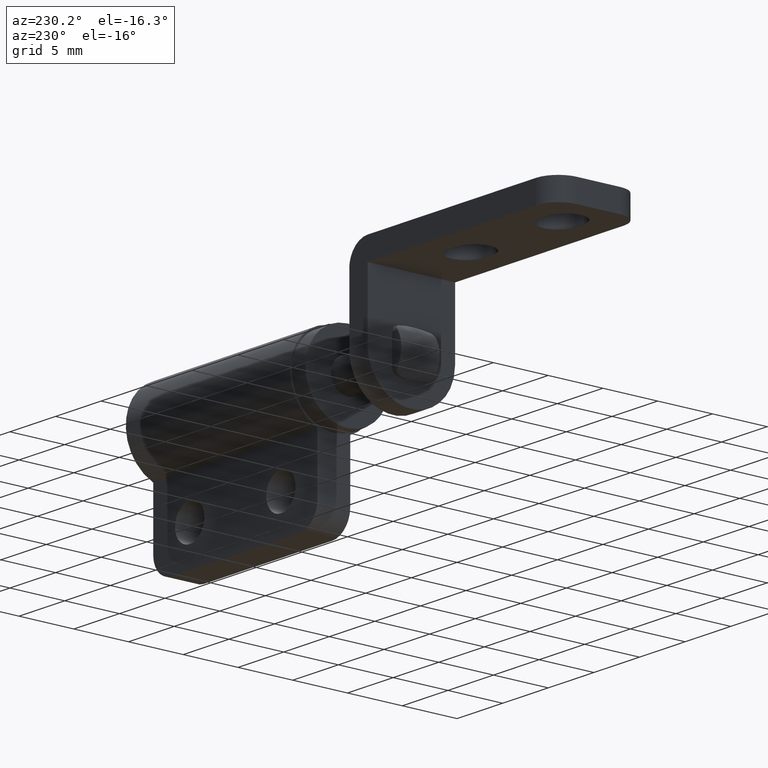
[diagram: clean part render]
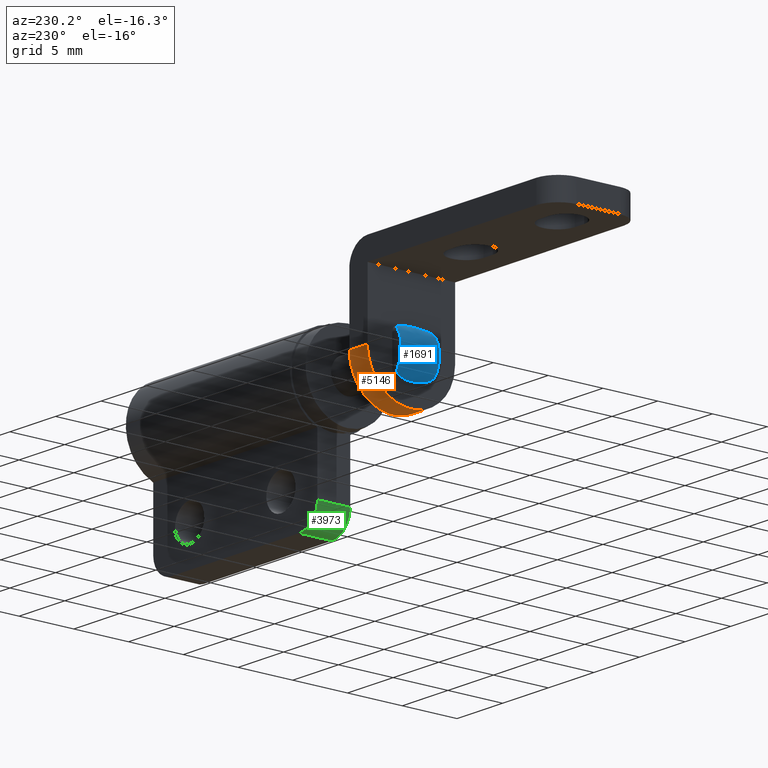
[diagram: same view with three faces highlighted in distinct colors, each labeled with its STEP entity id]
A machine part, auxiliary view with three faces highlighted in distinct colors.
Their STEP definitions:

[orange] entity #5146 — the highlighted face is a freeform B-spline surface patch.
#4999=CARTESIAN_POINT('',(-2.0,3.999999999999940,0.000000698131700));
#5000=VERTEX_POINT('',#4999);
#5008=CARTESIAN_POINT('',(-2.0,-3.999999999999885,-2.449213E-016));
#5009=VERTEX_POINT('',#5008);
#5010=CARTESIAN_POINT('',(-2.0,-3.999999999999885,-2.449213E-016));
#5011=CARTESIAN_POINT('',(-2.000000000000000,-4.0,-2.309401231898885));
#5012=CARTESIAN_POINT('',(-2.0,-1.999999798466734,-3.464101731493032));
#5013=CARTESIAN_POINT('',(-2.000000000000000,0.000000403066532,-4.618802231087182));
#5014=CARTESIAN_POINT('',(-2.0,2.000000403066511,-3.464101382427165));
#5015=CARTESIAN_POINT('',(-2.000000000000000,4.000000403066491,-2.309400533767148));
#5016=CARTESIAN_POINT('',(-2.0,3.999999999999939,0.000000698131699));
#5024=(BOUNDED_CURVE()B_SPLINE_CURVE(2,(#5010,#5011,#5012,#5013,#5014,#5015,#5016),.UNSPECIFIED.,.F.,.U.)B_SPLINE_CURVE_WITH_KNOTS((3,2,2,3),(0.0,0.333333333333333,0.666666666666667,1.0),.UNSPECIFIED.)CURVE()GEOMETRIC_REPRESENTATION_ITEM()RATIONAL_B_SPLINE_CURVE((1.0,0.866025389240028,1.0,0.866025389240028,1.0,0.866025389240028,1.0))REPRESENTATION_ITEM(''));
#5025=EDGE_CURVE('',#5009,#5000,#5024,.T.);
#5053=CARTESIAN_POINT('',(0.0,3.999999999999940,0.000000698131700));
#5054=VERTEX_POINT('',#5053);
#5061=CARTESIAN_POINT('',(0.0,-3.999999999999885,-2.449213E-016));
#5062=VERTEX_POINT('',#5061);
#5068=CARTESIAN_POINT('',(0.0,-3.999999999999885,-2.449213E-016));
#5069=CARTESIAN_POINT('',(0.0,-4.0,-2.309401231898885));
#5070=CARTESIAN_POINT('',(0.0,-1.999999798466734,-3.464101731493032));
#5071=CARTESIAN_POINT('',(0.0,0.000000403066532,-4.618802231087182));
#5072=CARTESIAN_POINT('',(0.0,2.000000403066511,-3.464101382427165));
#5073=CARTESIAN_POINT('',(0.0,4.000000403066491,-2.309400533767148));
#5074=CARTESIAN_POINT('',(0.0,3.999999999999939,0.000000698131699));
#5082=(BOUNDED_CURVE()B_SPLINE_CURVE(2,(#5068,#5069,#5070,#5071,#5072,#5073,#5074),.UNSPECIFIED.,.F.,.U.)B_SPLINE_CURVE_WITH_KNOTS((3,2,2,3),(0.0,0.333333333333333,0.666666666666667,1.0),.UNSPECIFIED.)CURVE()GEOMETRIC_REPRESENTATION_ITEM()RATIONAL_B_SPLINE_CURVE((1.0,0.866025389240028,1.0,0.866025389240028,1.0,0.866025389240028,1.0))REPRESENTATION_ITEM(''));
#5083=EDGE_CURVE('',#5062,#5054,#5082,.T.);
#5114=CARTESIAN_POINT('',(-2.050000000000000,3.998629281627209,0.104708491123965));
#5115=CARTESIAN_POINT('',(0.051250000000000,3.998629281627209,0.104708491123965));
#5116=CARTESIAN_POINT('',(-2.050000000000000,4.108009198430141,-4.072314150070897));
#5117=CARTESIAN_POINT('',(0.051250000000000,4.108009198430141,-4.072314150070897));
#5118=CARTESIAN_POINT('',(-2.050000000000000,-0.069808927723755,-3.999390792809581));
#5119=CARTESIAN_POINT('',(0.051250000000000,-0.069808927723755,-3.999390792809581));
#5120=CARTESIAN_POINT('',(-2.050000000000000,-4.247627053877651,-3.926467435548264));
#5121=CARTESIAN_POINT('',(0.051250000000000,-4.247627053877651,-3.926467435548264));
#5122=CARTESIAN_POINT('',(-2.050000000000000,-3.992539236307326,0.244193461309873));
#5123=CARTESIAN_POINT('',(0.051250000000000,-3.992539236307326,0.244193461309873));
#5131=(BOUNDED_SURFACE()B_SPLINE_SURFACE(1,2,((#5114,#5116,#5118,#5120,#5122),(#5115,#5117,#5119,#5121,#5123)),.UNSPECIFIED.,.F.,.F.,.U.)B_SPLINE_SURFACE_WITH_KNOTS((2,2),(3,2,3),(0.0,2.101250000000000),(0.0,6.832831324267236,13.665662648534470),.UNSPECIFIED.)GEOMETRIC_REPRESENTATION_ITEM()RATIONAL_B_SPLINE_SURFACE(((1.0,0.691513055782269,1.0,0.691513055782269,1.0),(1.0,0.691513055782269,1.0,0.691513055782269,1.0)))REPRESENTATION_ITEM('')SURFACE());
#5132=ORIENTED_EDGE('',*,*,#5025,.T.);
#5133=CARTESIAN_POINT('',(-2.0,3.999999999999940,0.000000698131700));
#5134=CARTESIAN_POINT('',(0.0,3.999999999999940,0.000000698131700));
#5135=QUASI_UNIFORM_CURVE('',1,(#5133,#5134),.UNSPECIFIED.,.F.,.U.);
#5136=EDGE_CURVE('',#5000,#5054,#5135,.T.);
#5137=ORIENTED_EDGE('',*,*,#5136,.T.);
#5138=ORIENTED_EDGE('',*,*,#5083,.F.);
#5139=CARTESIAN_POINT('',(-2.0,-3.999999999999885,-2.449213E-016));
#5140=CARTESIAN_POINT('',(0.0,-3.999999999999885,-2.449213E-016));
#5141=QUASI_UNIFORM_CURVE('',1,(#5139,#5140),.UNSPECIFIED.,.F.,.U.);
#5142=EDGE_CURVE('',#5009,#5062,#5141,.T.);
#5143=ORIENTED_EDGE('',*,*,#5142,.F.);
#5144=EDGE_LOOP('',(#5132,#5137,#5138,#5143));
#5145=FACE_OUTER_BOUND('',#5144,.T.);
#5146=ADVANCED_FACE('',(#5145),#5131,.T.);

[blue] entity #1691 — the highlighted face is a freeform B-spline surface patch.
#1510=CARTESIAN_POINT('',(-1.921807961199772,-1.837500000000045,2.056322475067796));
#1511=CARTESIAN_POINT('',(-1.921807961199772,1.839687500000596,2.056322475067796));
#1512=CARTESIAN_POINT('',(-4.913775728285486,-1.837500000000045,-0.012420945516236));
#1513=CARTESIAN_POINT('',(-4.913775728285486,1.839687500000596,-0.012420945516236));
#1514=CARTESIAN_POINT('',(-1.910212009587225,-1.837500000000045,-2.064292151807964));
#1515=CARTESIAN_POINT('',(-1.910212009587225,1.839687500000596,-2.064292151807964));
#1523=(BOUNDED_SURFACE()B_SPLINE_SURFACE(1,2,((#1510,#1512,#1514),(#1511,#1513,#1515)),.UNSPECIFIED.,.F.,.F.,.U.)B_SPLINE_SURFACE_WITH_KNOTS((2,2),(3,3),(0.0,3.677187500000641),(0.0,5.261254514920342),.UNSPECIFIED.)GEOMETRIC_REPRESENTATION_ITEM()RATIONAL_B_SPLINE_SURFACE(((1.0,0.566406236924832,1.0),(1.0,0.566406236924832,1.0)))REPRESENTATION_ITEM('')SURFACE());
#1524=CARTESIAN_POINT('',(-2.231580905230885,1.388888226619866,-1.803226987553035));
#1525=VERTEX_POINT('',#1524);
#1526=CARTESIAN_POINT('',(-2.621300796528165,1.750000000000000,-1.322906999999902));
#1527=VERTEX_POINT('',#1526);
#1528=CARTESIAN_POINT('',(-2.231580905230885,1.388888226619866,-1.803226987553035));
#1529=CARTESIAN_POINT('',(-2.240450583166217,1.418343617372642,-1.794709743179992));
#1530=CARTESIAN_POINT('',(-2.251559138744801,1.445667799850409,-1.783917962996185));
#1531=CARTESIAN_POINT('',(-2.277007657312867,1.497012797472820,-1.758569499604694));
#1532=CARTESIAN_POINT('',(-2.291472290085053,1.521179085770696,-1.743883620933930));
#1533=CARTESIAN_POINT('',(-2.337951253218330,1.588215803182173,-1.695271744618206));
#1534=CARTESIAN_POINT('',(-2.372137488597060,1.624954173491958,-1.657761486796310));
#1535=CARTESIAN_POINT('',(-2.425852736574005,1.670729096676524,-1.594321132523844));
#1536=CARTESIAN_POINT('',(-2.444011819851440,1.684204203666291,-1.572154308008622));
#1537=CARTESIAN_POINT('',(-2.480152411460389,1.707443985002869,-1.526383797665352));
#1538=CARTESIAN_POINT('',(-2.498213670428477,1.717274464804618,-1.502687567041340));
#1539=CARTESIAN_POINT('',(-2.534217899119109,1.733313749877256,-1.453576689846815));
#1540=CARTESIAN_POINT('',(-2.552228295995989,1.739522548675354,-1.428054283216577));
#1541=CARTESIAN_POINT('',(-2.587334522710068,1.747840288501843,-1.376231948694050));
#1542=CARTESIAN_POINT('',(-2.604511502624234,1.749999917480232,-1.349828936607812));
#1543=CARTESIAN_POINT('',(-2.621300796528165,1.750000000000000,-1.322906999999902));
#1544=B_SPLINE_CURVE_WITH_KNOTS('',3,(#1528,#1529,#1530,#1531,#1532,#1533,#1534,#1535,#1536,#1537,#1538,#1539,#1540,#1541,#1542,#1543),.UNSPECIFIED.,.F.,.U.,(4,2,2,2,2,2,2,4),(0.0,0.125000000000000,0.250000000000001,0.500000000000000,0.625000000000000,0.750000000000000,0.875000000000000,1.0),.UNSPECIFIED.);
#1545=EDGE_CURVE('',#1525,#1527,#1544,.T.);
#1546=ORIENTED_EDGE('',*,*,#1545,.F.);
#1547=CARTESIAN_POINT('',(-2.0,0.0,-2.0));
#1548=VERTEX_POINT('',#1547);
#1549=CARTESIAN_POINT('',(-2.0,0.0,-2.0));
#1550=CARTESIAN_POINT('',(-2.000000000232162,0.000298288051670,-1.999999999886669));
#1551=CARTESIAN_POINT('',(-2.000000035590247,0.000596567469640,-1.999999973307316));
#1552=CARTESIAN_POINT('',(-2.000057196693018,0.240142025331833,-1.999957102475471));
#1553=CARTESIAN_POINT('',(-2.023495914994165,0.475115351380572,-1.982863293074534));
#1554=CARTESIAN_POINT('',(-2.085253085695908,0.822292095118232,-1.933305282359250));
#1555=CARTESIAN_POINT('',(-2.110181861070440,0.937145370236767,-1.912777047624411));
#1556=CARTESIAN_POINT('',(-2.166736539132905,1.165335754643832,-1.863703562468636));
#1557=CARTESIAN_POINT('',(-2.198172971597642,1.277943205288681,-1.835307552208482));
#1558=CARTESIAN_POINT('',(-2.231580905230885,1.388888226619866,-1.803226987553035));
#1559=B_SPLINE_CURVE_WITH_KNOTS('',3,(#1549,#1550,#1551,#1552,#1553,#1554,#1555,#1556,#1557,#1558),.UNSPECIFIED.,.F.,.U.,(4,2,2,2,4),(0.499688324862712,0.500000000000000,0.750000000000000,0.875000000000000,1.0),.UNSPECIFIED.);
#1560=EDGE_CURVE('',#1548,#1525,#1559,.T.);
#1561=ORIENTED_EDGE('',*,*,#1560,.F.);
#1562=CARTESIAN_POINT('',(-2.231578277623630,-1.388889472822216,-1.803229510756130));
#1563=VERTEX_POINT('',#1562);
#1564=CARTESIAN_POINT('',(-2.231578277623630,-1.388889472822216,-1.803229510756130));
#1565=CARTESIAN_POINT('',(-2.164809650080568,-1.167154629476650,-1.867345272305153));
#1566=CARTESIAN_POINT('',(-2.106621949110107,-0.941406404542805,-1.916135863614482));
#1567=CARTESIAN_POINT('',(-2.044623704510737,-0.594395502265664,-1.965919842948294));
#1568=CARTESIAN_POINT('',(-2.028197507497242,-0.477318055849678,-1.978588103088411));
#1569=CARTESIAN_POINT('',(-2.011426539285759,-0.299262459231955,-1.991391400327847));
#1570=CARTESIAN_POINT('',(-2.007145675916522,-0.239504076633585,-1.994624060668627));
#1571=CARTESIAN_POINT('',(-2.001425880136172,-0.119423794847005,-1.998933030314857));
#1572=CARTESIAN_POINT('',(-1.999999986833724,-0.059517495461005,-2.000000055769492));
#1573=CARTESIAN_POINT('',(-2.0,0.0,-2.0));
#1574=B_SPLINE_CURVE_WITH_KNOTS('',3,(#1564,#1565,#1566,#1567,#1568,#1569,#1570,#1571,#1572,#1573),.UNSPECIFIED.,.F.,.U.,(4,2,2,2,4),(0.000000267062268,0.250000000000000,0.375000000000000,0.437500000000000,0.499688324918460),.UNSPECIFIED.);
#1575=EDGE_CURVE('',#1563,#1548,#1574,.T.);
#1576=ORIENTED_EDGE('',*,*,#1575,.F.);
#1577=CARTESIAN_POINT('',(-2.621300796528220,-1.750000000000030,-1.322906999999900));
#1578=VERTEX_POINT('',#1577);
#1579=CARTESIAN_POINT('',(-2.621300796528220,-1.750000000000030,-1.322906999999900));
#1580=CARTESIAN_POINT('',(-2.587668871316012,-1.750000000000000,-1.376836285838833));
#1581=CARTESIAN_POINT('',(-2.552846594105454,-1.741509495721354,-1.428112244776166));
#1582=CARTESIAN_POINT('',(-2.499056958033337,-1.717701159371031,-1.501563255141452));
#1583=CARTESIAN_POINT('',(-2.480739105526798,-1.707789736904748,-1.525625551551258));
#1584=CARTESIAN_POINT('',(-2.444391311738036,-1.684481611509141,-1.571687995292585));
#1585=CARTESIAN_POINT('',(-2.426397385015220,-1.671140959390201,-1.593658295977338));
#1586=CARTESIAN_POINT('',(-2.390936930163287,-1.641028930096264,-1.635576710361062));
#1587=CARTESIAN_POINT('',(-2.373468087315590,-1.624261693851273,-1.655525851617298));
#1588=CARTESIAN_POINT('',(-2.339355073502984,-1.586870743043845,-1.693346223647705));
#1589=CARTESIAN_POINT('',(-2.322768279629445,-1.566266052165571,-1.711143963320547));
#1590=CARTESIAN_POINT('',(-2.291935904076780,-1.521906167066597,-1.743405741676953));
#1591=CARTESIAN_POINT('',(-2.277552911794343,-1.498027086059077,-1.758021287628328));
#1592=CARTESIAN_POINT('',(-2.251692274767099,-1.446032091249348,-1.783790171658140));
#1593=CARTESIAN_POINT('',(-2.240436961839705,-1.418308205152491,-1.794722825908034));
#1594=CARTESIAN_POINT('',(-2.231578277623630,-1.388889472822216,-1.803229510756130));
#1595=B_SPLINE_CURVE_WITH_KNOTS('',3,(#1579,#1580,#1581,#1582,#1583,#1584,#1585,#1586,#1587,#1588,#1589,#1590,#1591,#1592,#1593,#1594),.UNSPECIFIED.,.F.,.U.,(4,2,2,2,2,2,2,4),(0.0,0.249999999999999,0.374999999999999,0.500000000000000,0.625000000000000,0.750000000000000,0.875000000000000,1.0),.UNSPECIFIED.);
#1596=EDGE_CURVE('',#1578,#1563,#1595,.T.);
#1597=ORIENTED_EDGE('',*,*,#1596,.F.);
#1598=CARTESIAN_POINT('',(-2.621310774525685,-1.750000000000000,1.322891000000000));
#1599=VERTEX_POINT('',#1598);
#1600=CARTESIAN_POINT('',(-2.621310774525685,-1.750000000000000,1.322891000000000));
#1601=CARTESIAN_POINT('',(-3.446298474530624,-1.750000000000030,-0.000011111263529));
#1602=CARTESIAN_POINT('',(-2.621300796528221,-1.750000000000030,-1.322906999999899));
#1610=(BOUNDED_CURVE()B_SPLINE_CURVE(2,(#1600,#1601,#1602),.UNSPECIFIED.,.F.,.U.)CURVE()GEOMETRIC_REPRESENTATION_ITEM()QUASI_UNIFORM_CURVE()RATIONAL_B_SPLINE_CURVE((1.0,0.848522314216823,1.0))REPRESENTATION_ITEM(''));
#1611=EDGE_CURVE('',#1599,#1578,#1610,.T.);
#1612=ORIENTED_EDGE('',*,*,#1611,.F.);
#1613=CARTESIAN_POINT('',(-2.231587148166510,-1.388886278477538,1.803220992641885));
#1614=VERTEX_POINT('',#1613);
#1615=CARTESIAN_POINT('',(-2.231587148166510,-1.388886278477538,1.803220992641885));
#1616=CARTESIAN_POINT('',(-2.240456718170283,-1.418342166280598,1.794703770686858));
#1617=CARTESIAN_POINT('',(-2.251565255311011,-1.445666797923753,1.783911910541594));
#1618=CARTESIAN_POINT('',(-2.277013866756628,-1.497012621304928,1.758563125264356));
#1619=CARTESIAN_POINT('',(-2.291478624442612,-1.521179303768965,1.743876989106868));
#1620=CARTESIAN_POINT('',(-2.337958016153634,-1.588216947699236,1.695264224462145));
#1621=CARTESIAN_POINT('',(-2.372144678020666,-1.624955740639618,1.657753160578472));
#1622=CARTESIAN_POINT('',(-2.425860685938021,-1.670731025341546,1.594311270602636));
#1623=CARTESIAN_POINT('',(-2.444019953622803,-1.684206136567082,1.572143989091581));
#1624=CARTESIAN_POINT('',(-2.480160983635427,-1.707445880182768,1.526372425526736));
#1625=CARTESIAN_POINT('',(-2.498222467937828,-1.717276291746369,1.502675631147278));
#1626=CARTESIAN_POINT('',(-2.534227156448029,-1.733315316149366,1.453563538268893));
#1627=CARTESIAN_POINT('',(-2.552237749580655,-1.739523902319215,1.428040529293062));
#1628=CARTESIAN_POINT('',(-2.587344261442941,-1.747841069353294,1.376217086192694));
#1629=CARTESIAN_POINT('',(-2.604521368806252,-1.750000348444921,1.349813510812030));
#1630=CARTESIAN_POINT('',(-2.621310774525685,-1.750000000000000,1.322891000000000));
#1631=B_SPLINE_CURVE_WITH_KNOTS('',3,(#1615,#1616,#1617,#1618,#1619,#1620,#1621,#1622,#1623,#1624,#1625,#1626,#1627,#1628,#1629,#1630),.UNSPECIFIED.,.F.,.U.,(4,2,2,2,2,2,2,4),(0.0,0.125000000000000,0.250000000000000,0.500000000000001,0.625000000000000,0.750000000000000,0.875000000000000,1.0),.UNSPECIFIED.);
#1632=EDGE_CURVE('',#1614,#1599,#1631,.T.);
#1633=ORIENTED_EDGE('',*,*,#1632,.F.);
#1634=CARTESIAN_POINT('',(-2.231587211281825,1.388886488057648,1.803220932033855));
#1635=VERTEX_POINT('',#1634);
#1636=CARTESIAN_POINT('',(-2.231587211281825,1.388886488057648,1.803220932033855));
#1637=CARTESIAN_POINT('',(-2.164819779801977,1.167151523913028,1.867335998816182));
#1638=CARTESIAN_POINT('',(-2.106633316993713,0.941403465346963,1.916126085351439));
#1639=CARTESIAN_POINT('',(-2.044636376275878,0.594393080922408,1.965909690867040));
#1640=CARTESIAN_POINT('',(-2.028210529303697,0.477315955915445,1.978577882309019));
#1641=CARTESIAN_POINT('',(-2.011439837576636,0.299260972589455,1.991381199556126));
#1642=CARTESIAN_POINT('',(-2.007159024812994,0.239502816328413,1.994613887233556));
#1643=CARTESIAN_POINT('',(-2.001424933434797,0.119122879731875,1.998933729386877));
#1644=CARTESIAN_POINT('',(-1.999999029557150,0.058916479481721,2.000000727911393));
#1645=CARTESIAN_POINT('',(-2.000070415255551,-0.240141709811838,1.999947187895473));
#1646=CARTESIAN_POINT('',(-2.023508313556131,-0.475114514798693,1.982853728140196));
#1647=CARTESIAN_POINT('',(-2.085263503390685,-0.822290586891473,1.933296730195865));
#1648=CARTESIAN_POINT('',(-2.110191498274596,-0.937143655971958,1.912768915879353));
#1649=CARTESIAN_POINT('',(-2.166744475869048,-1.165333652648182,1.863696444926073));
#1650=CARTESIAN_POINT('',(-2.198180075121301,-1.277941216289168,1.835300953212157));
#1651=CARTESIAN_POINT('',(-2.231587148166510,-1.388886278477538,1.803220992641885));
#1652=B_SPLINE_CURVE_WITH_KNOTS('',3,(#1636,#1637,#1638,#1639,#1640,#1641,#1642,#1643,#1644,#1645,#1646,#1647,#1648,#1649,#1650,#1651),.UNSPECIFIED.,.F.,.U.,(4,2,2,2,2,2,2,4),(0.0,0.250000000000000,0.375000000000000,0.437500000000000,0.500000000000000,0.750000000000000,0.875000000000000,1.0),.UNSPECIFIED.);
#1653=EDGE_CURVE('',#1635,#1614,#1652,.T.);
#1654=ORIENTED_EDGE('',*,*,#1653,.F.);
#1655=CARTESIAN_POINT('',(-2.621310774525685,1.750000000000580,1.322891000000000));
#1656=VERTEX_POINT('',#1655);
#1657=CARTESIAN_POINT('',(-2.621310774525685,1.750000000000580,1.322891000000000));
#1658=CARTESIAN_POINT('',(-2.587678855990532,1.750000719170851,1.376821181062984));
#1659=CARTESIAN_POINT('',(-2.552856503948320,1.741510621050697,1.428098034212409));
#1660=CARTESIAN_POINT('',(-2.499066633663292,1.717702523887508,1.501550381923690));
#1661=CARTESIAN_POINT('',(-2.480748675862113,1.707791111052231,1.525613133291533));
#1662=CARTESIAN_POINT('',(-2.444400706103715,1.684482918941787,1.571676380017368));
#1663=CARTESIAN_POINT('',(-2.426406681753814,1.671142176885705,1.593647064076991));
#1664=CARTESIAN_POINT('',(-2.390946018190817,1.641029849475598,1.635566209187281));
#1665=CARTESIAN_POINT('',(-2.373477064104636,1.624262405455956,1.655515697904731));
#1666=CARTESIAN_POINT('',(-2.339363825179440,1.586870892554427,1.693336722083467));
#1667=CARTESIAN_POINT('',(-2.322776998946382,1.566265944279883,1.711134677383154));
#1668=CARTESIAN_POINT('',(-2.291944550256448,1.521905391847975,1.743396856954074));
#1669=CARTESIAN_POINT('',(-2.277561529538660,1.498025910365381,1.758012574980337));
#1670=CARTESIAN_POINT('',(-2.251700897575455,1.446029905676668,1.783781704838954));
#1671=CARTESIAN_POINT('',(-2.240445736789585,1.418305694305010,1.794714315230914));
#1672=CARTESIAN_POINT('',(-2.231587211281825,1.388886488057648,1.803220932033855));
#1673=B_SPLINE_CURVE_WITH_KNOTS('',3,(#1657,#1658,#1659,#1660,#1661,#1662,#1663,#1664,#1665,#1666,#1667,#1668,#1669,#1670,#1671,#1672),.UNSPECIFIED.,.F.,.U.,(4,2,2,2,2,2,2,4),(0.0,0.250000000000000,0.375000000000000,0.500000000000000,0.625000000000000,0.750000000000000,0.875000000000000,1.0),.UNSPECIFIED.);
#1674=EDGE_CURVE('',#1656,#1635,#1673,.T.);
#1675=ORIENTED_EDGE('',*,*,#1674,.F.);
#1676=CARTESIAN_POINT('',(-2.621300796528165,1.750000000000000,-1.322906999999902));
#1677=CARTESIAN_POINT('',(-3.446298474530636,1.750000000000030,-0.000011111263548));
#1678=CARTESIAN_POINT('',(-2.621310774525685,1.750000000000580,1.322891000000000));
#1686=(BOUNDED_CURVE()B_SPLINE_CURVE(2,(#1676,#1677,#1678),.UNSPECIFIED.,.F.,.U.)CURVE()GEOMETRIC_REPRESENTATION_ITEM()QUASI_UNIFORM_CURVE()RATIONAL_B_SPLINE_CURVE((1.0,0.848522314216820,1.0))REPRESENTATION_ITEM(''));
#1687=EDGE_CURVE('',#1527,#1656,#1686,.T.);
#1688=ORIENTED_EDGE('',*,*,#1687,.F.);
#1689=EDGE_LOOP('',(#1546,#1561,#1576,#1597,#1612,#1633,#1654,#1675,#1688));
#1690=FACE_OUTER_BOUND('',#1689,.T.);
#1691=ADVANCED_FACE('',(#1690),#1523,.T.);

[green] entity #3973 — the highlighted face is a freeform B-spline surface patch.
#3913=CARTESIAN_POINT('',(8.552353896615747,1.575000000000000,-10.999314649950909));
#3914=CARTESIAN_POINT('',(8.552353896615747,-1.576875000000001,-10.999314649950909));
#3915=CARTESIAN_POINT('',(6.350030398890563,1.575000000000001,-11.056984520332323));
#3916=CARTESIAN_POINT('',(6.350030398890563,-1.576875000000000,-11.056984520332323));
#3917=CARTESIAN_POINT('',(6.504951041238384,1.575000000000000,-8.859359848747832));
#3918=CARTESIAN_POINT('',(6.504951041238384,-1.576875000000001,-8.859359848747832));
#3926=(BOUNDED_SURFACE()B_SPLINE_SURFACE(1,2,((#3913,#3915,#3917),(#3914,#3916,#3918)),.UNSPECIFIED.,.F.,.F.,.U.)B_SPLINE_SURFACE_WITH_KNOTS((2,2),(3,3),(0.0,3.151875000000001),(0.0,3.542284688176721),.UNSPECIFIED.)GEOMETRIC_REPRESENTATION_ITEM()RATIONAL_B_SPLINE_SURFACE(((1.0,0.670944223154768,0.996392648609106),(1.0,0.670944223154768,0.996392648609106)))REPRESENTATION_ITEM('')SURFACE());
#3927=CARTESIAN_POINT('',(6.500000000000000,-1.500000000000000,-8.999999999999799));
#3928=VERTEX_POINT('',#3927);
#3929=CARTESIAN_POINT('',(8.500000000000000,-1.500000000000000,-10.999999999999799));
#3930=VERTEX_POINT('',#3929);
#3931=CARTESIAN_POINT('',(6.500000000000001,-1.500000000000000,-8.999999999999799));
#3932=CARTESIAN_POINT('',(6.500000000000003,-1.500000000000000,-10.999999999999799));
#3933=CARTESIAN_POINT('',(8.500000000000000,-1.500000000000000,-10.999999999999799));
#3941=(BOUNDED_CURVE()B_SPLINE_CURVE(2,(#3931,#3932,#3933),.UNSPECIFIED.,.F.,.U.)CURVE()GEOMETRIC_REPRESENTATION_ITEM()QUASI_UNIFORM_CURVE()RATIONAL_B_SPLINE_CURVE((1.0,0.707106781186548,1.0))REPRESENTATION_ITEM(''));
#3942=EDGE_CURVE('',#3928,#3930,#3941,.T.);
#3943=ORIENTED_EDGE('',*,*,#3942,.F.);
#3944=CARTESIAN_POINT('',(6.500000000000000,1.500000000000000,-8.999999999999799));
#3945=VERTEX_POINT('',#3944);
#3946=CARTESIAN_POINT('',(6.500000000000000,1.500000000000000,-8.999999999999799));
#3947=CARTESIAN_POINT('',(6.500000000000000,-1.500000000000000,-8.999999999999799));
#3948=QUASI_UNIFORM_CURVE('',1,(#3946,#3947),.UNSPECIFIED.,.F.,.U.);
#3949=EDGE_CURVE('',#3945,#3928,#3948,.T.);
#3950=ORIENTED_EDGE('',*,*,#3949,.F.);
#3951=CARTESIAN_POINT('',(8.500000000000000,1.500000000000000,-10.999999999999799));
#3952=VERTEX_POINT('',#3951);
#3953=CARTESIAN_POINT('',(8.500000000000000,1.500000000000000,-10.999999999999799));
#3954=CARTESIAN_POINT('',(6.500000000000003,1.500000000000000,-10.999999999999799));
#3955=CARTESIAN_POINT('',(6.500000000000001,1.500000000000000,-8.999999999999799));
#3963=(BOUNDED_CURVE()B_SPLINE_CURVE(2,(#3953,#3954,#3955),.UNSPECIFIED.,.F.,.U.)CURVE()GEOMETRIC_REPRESENTATION_ITEM()QUASI_UNIFORM_CURVE()RATIONAL_B_SPLINE_CURVE((1.0,0.707106781186548,1.0))REPRESENTATION_ITEM(''));
#3964=EDGE_CURVE('',#3952,#3945,#3963,.T.);
#3965=ORIENTED_EDGE('',*,*,#3964,.F.);
#3966=CARTESIAN_POINT('',(8.500000000000000,-1.500000000000000,-10.999999999999799));
#3967=CARTESIAN_POINT('',(8.500000000000000,1.500000000000000,-10.999999999999799));
#3968=QUASI_UNIFORM_CURVE('',1,(#3966,#3967),.UNSPECIFIED.,.F.,.U.);
#3969=EDGE_CURVE('',#3930,#3952,#3968,.T.);
#3970=ORIENTED_EDGE('',*,*,#3969,.F.);
#3971=EDGE_LOOP('',(#3943,#3950,#3965,#3970));
#3972=FACE_OUTER_BOUND('',#3971,.T.);
#3973=ADVANCED_FACE('',(#3972),#3926,.T.);